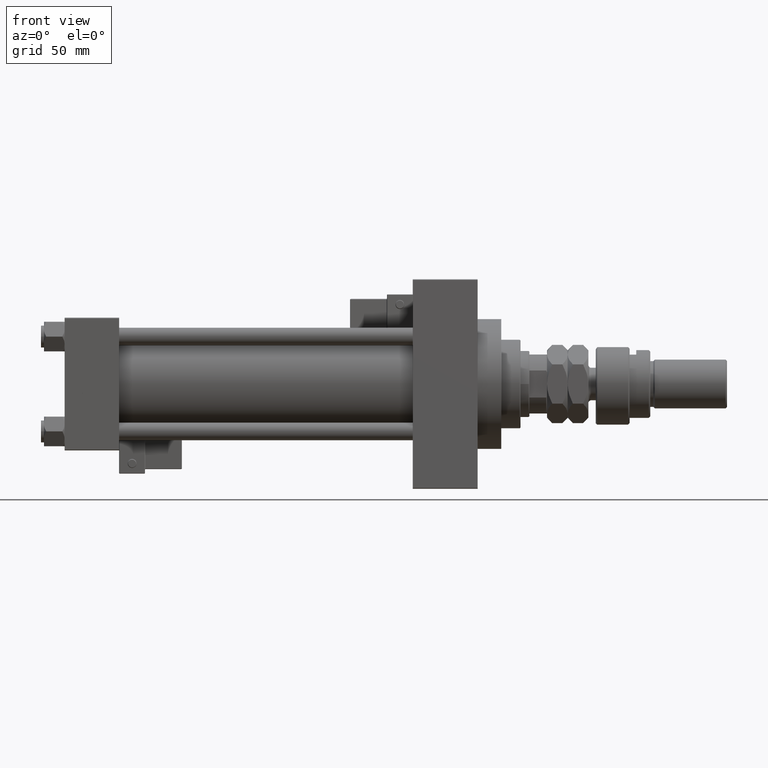
[diagram: clean part render]
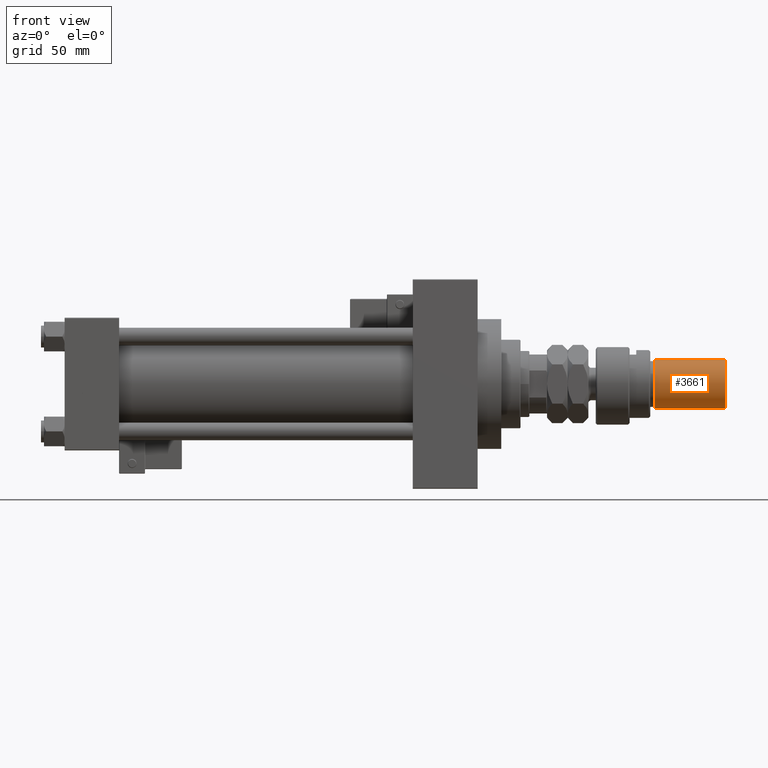
[diagram: same view with one face highlighted and labeled with its STEP entity id]
A machine part, front view. The second image highlights one B-rep face of the part: STEP entity #3661.
In plain terms, the highlighted cylindrical surface (edge-blend (fillet) strip) has radius 16.5 mm, axis along (-1, -0, 0).
Its self-contained STEP definition (entity closure, byte-faithful):
#3163 = CARTESIAN_POINT ( 'NONE',  ( 16.50000000000000000, 2.020667218593133100E-15, 88.00000000000001421 ) ) ;
#3661 = ADVANCED_FACE ( 'NONE', ( #50013 ), #8754, .T. ) ;
#5405 = CARTESIAN_POINT ( 'NONE',  ( 0.000000000000000000, 0.000000000000000000, 39.99999999999998579 ) ) ;
#6363 = ORIENTED_EDGE ( 'NONE', *, *, #52679, .T. ) ;
#6604 = CARTESIAN_POINT ( 'NONE',  ( -16.50000000000000000, 0.000000000000000000, 89.00000000000000000 ) ) ;
#7451 = ORIENTED_EDGE ( 'NONE', *, *, #15880, .T. ) ;
#8754 = CYLINDRICAL_SURFACE ( 'NONE', #12721, 16.50000000000000000 ) ;
#10063 = DIRECTION ( 'NONE',  ( -0.000000000000000000, -0.000000000000000000, 1.000000000000000000 ) ) ;
#10499 = VERTEX_POINT ( 'NONE', #15594 ) ;
#11347 = AXIS2_PLACEMENT_3D ( 'NONE', #50515, #54086, #38151 ) ;
#12349 = EDGE_CURVE ( 'NONE', #54311, #47361, #29826, .T. ) ;
#12721 = AXIS2_PLACEMENT_3D ( 'NONE', #46435, #29126, #41750 ) ;
#15274 = ORIENTED_EDGE ( 'NONE', *, *, #51507, .F. ) ;
#15397 = LINE ( 'NONE', #6604, #49783 ) ;
#15594 = CARTESIAN_POINT ( 'NONE',  ( -16.50000000000000000, 0.000000000000000000, 39.99999999999998579 ) ) ;
#15880 = EDGE_CURVE ( 'NONE', #10499, #49240, #48094, .T. ) ;
#22188 = DIRECTION ( 'NONE',  ( 1.000000000000000000, 0.000000000000000000, 0.000000000000000000 ) ) ;
#23517 = AXIS2_PLACEMENT_3D ( 'NONE', #5405, #10063, #22188 ) ;
#25726 = DIRECTION ( 'NONE',  ( -0.000000000000000000, -0.000000000000000000, -1.000000000000000000 ) ) ;
#29043 = CARTESIAN_POINT ( 'NONE',  ( 16.50000000000000000, 2.020667218593133100E-15, 89.00000000000000000 ) ) ;
#29126 = DIRECTION ( 'NONE',  ( -0.000000000000000000, -0.000000000000000000, -1.000000000000000000 ) ) ;
#29826 = CIRCLE ( 'NONE', #11347, 16.50000000000000000 ) ;
#30526 = EDGE_LOOP ( 'NONE', ( #15274, #40833, #6363, #7451 ) ) ;
#30760 = CARTESIAN_POINT ( 'NONE',  ( -16.50000000000000000, 0.000000000000000000, 88.00000000000001421 ) ) ;
#33937 = VECTOR ( 'NONE', #25726, 1000.000000000000000 ) ;
#37380 = CARTESIAN_POINT ( 'NONE',  ( 16.50000000000000000, 2.020667218593133100E-15, 39.99999999999998579 ) ) ;
#37561 = LINE ( 'NONE', #29043, #33937 ) ;
#38151 = DIRECTION ( 'NONE',  ( 1.000000000000000000, 0.000000000000000000, 0.000000000000000000 ) ) ;
#40833 = ORIENTED_EDGE ( 'NONE', *, *, #12349, .T. ) ;
#41750 = DIRECTION ( 'NONE',  ( -1.000000000000000000, 0.000000000000000000, 0.000000000000000000 ) ) ;
#46435 = CARTESIAN_POINT ( 'NONE',  ( 0.000000000000000000, 0.000000000000000000, 89.00000000000000000 ) ) ;
#47361 = VERTEX_POINT ( 'NONE', #30760 ) ;
#48094 = CIRCLE ( 'NONE', #23517, 16.50000000000000000 ) ;
#49240 = VERTEX_POINT ( 'NONE', #37380 ) ;
#49783 = VECTOR ( 'NONE', #53062, 1000.000000000000000 ) ;
#50013 = FACE_OUTER_BOUND ( 'NONE', #30526, .T. ) ;
#50515 = CARTESIAN_POINT ( 'NONE',  ( 0.000000000000000000, 0.000000000000000000, 88.00000000000001421 ) ) ;
#51507 = EDGE_CURVE ( 'NONE', #54311, #49240, #37561, .T. ) ;
#52679 = EDGE_CURVE ( 'NONE', #47361, #10499, #15397, .T. ) ;
#53062 = DIRECTION ( 'NONE',  ( -0.000000000000000000, -0.000000000000000000, -1.000000000000000000 ) ) ;
#54086 = DIRECTION ( 'NONE',  ( 0.000000000000000000, 0.000000000000000000, -1.000000000000000000 ) ) ;
#54311 = VERTEX_POINT ( 'NONE', #3163 ) ;